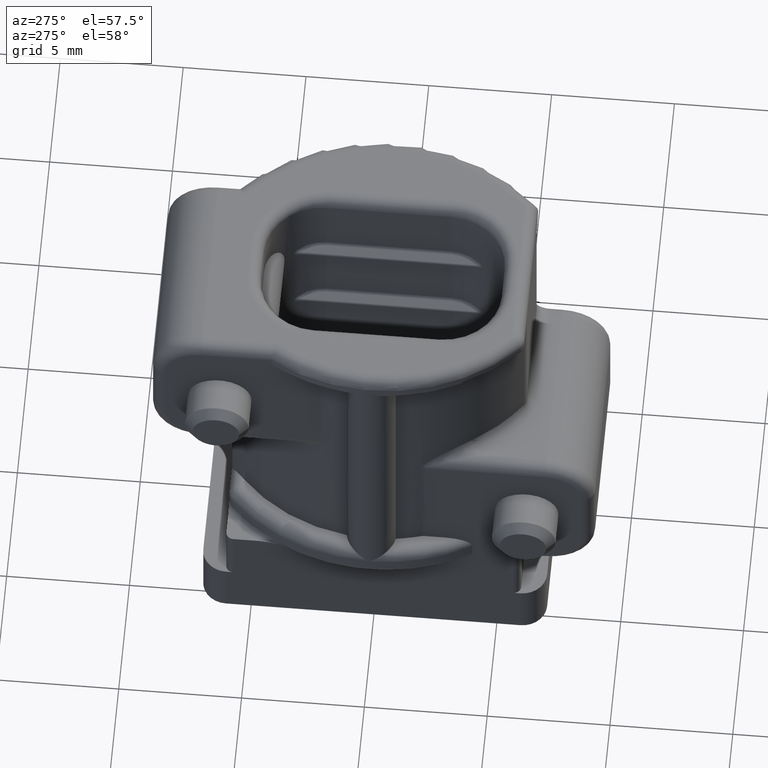
[diagram: clean part render]
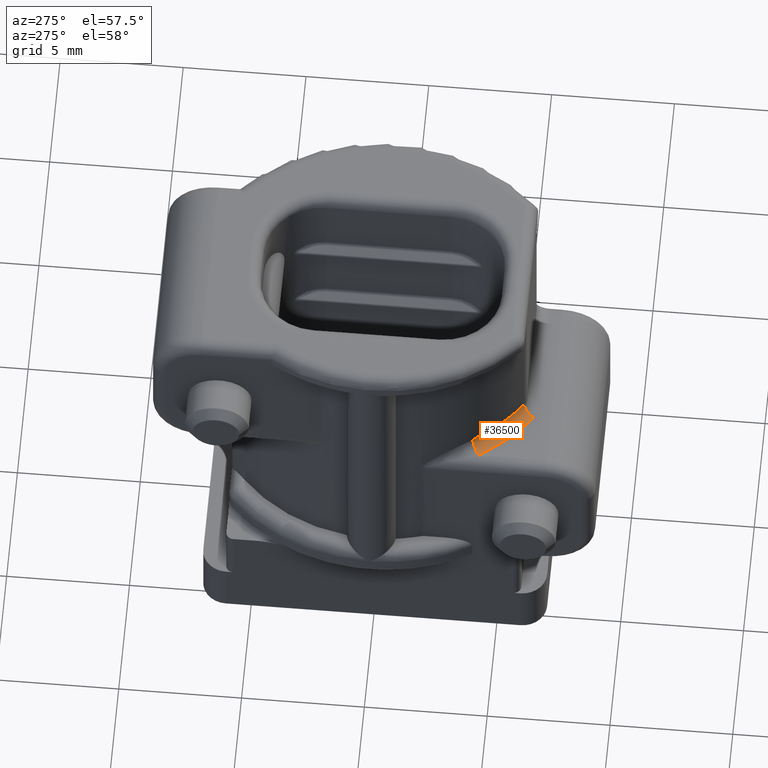
[diagram: same view with one face highlighted and labeled with its STEP entity id]
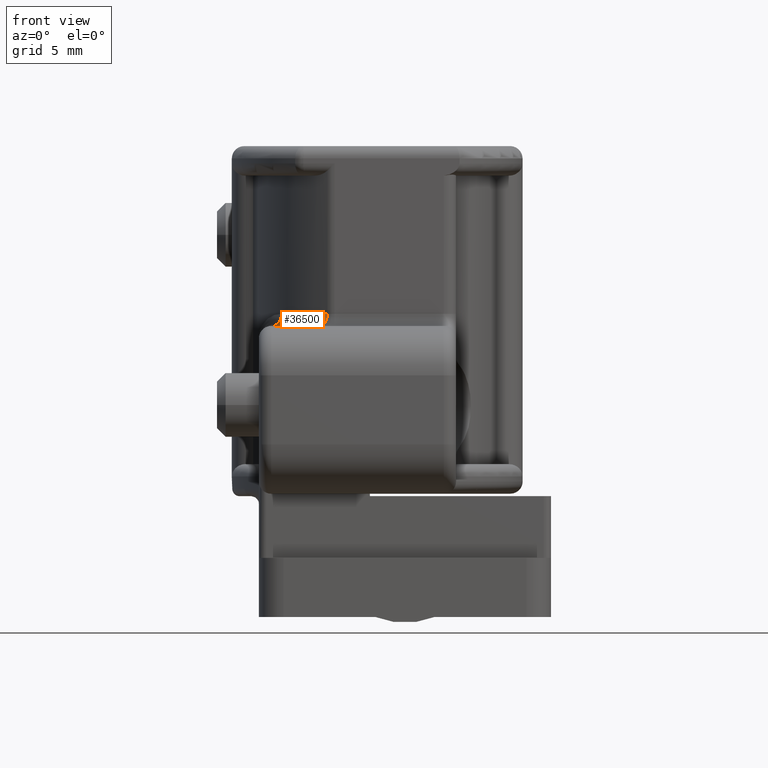
[diagram: same view with one face highlighted and labeled with its STEP entity id]
A machine part, auxiliary view. The second image highlights one B-rep face of the part: STEP entity #36500.
A second angle (front view) of the same face is appended — the face is thin or edge-on in the first view.
In plain terms, the highlighted face is a freeform B-spline surface patch.
Its self-contained STEP definition (entity closure, byte-faithful):
#35110=CARTESIAN_POINT('',(21.41775517589,-47.0709607659803,
2.28225100263955));
#35120=CARTESIAN_POINT('',(21.3025711537159,-47.0054394210852,
2.28225100263955));
#35130=CARTESIAN_POINT('',(21.1890697364984,-46.9369900740255,
2.28225100263955));
#35140=CARTESIAN_POINT('',(20.9308619156976,-46.7721563502708,
2.28225100263955));
#35150=CARTESIAN_POINT('',(20.7875286768989,-46.6737636515991,
2.28225100263955));
#35160=CARTESIAN_POINT('',(20.5076760054613,-46.4675667677873,
2.28225100263955));
#35170=CARTESIAN_POINT('',(20.3712347546678,-46.3598201874317,
2.28225100263955));
#35180=CARTESIAN_POINT('',(20.105779461153,-46.135391669303,
2.28225100263955));
#35190=CARTESIAN_POINT('',(19.9768395781123,-46.0187724296474,
2.28225100263955));
#35200=CARTESIAN_POINT('',(19.7269672503014,-45.7771146294447,
2.28225100263955));
#35210=CARTESIAN_POINT('',(19.6061046118318,-45.652143580323,
2.28225100263955));
#35220=CARTESIAN_POINT('',(19.3729312401982,-45.3943358004453,
2.28225100263955));
#35230=CARTESIAN_POINT('',(19.2606856481829,-45.2615710929001,
2.28225100263955));
#35240=CARTESIAN_POINT('',(19.0836344327847,-45.0373682532022,
2.28225100263955));
#35250=CARTESIAN_POINT('',(19.0162011531504,-44.9480926652216,
2.28225100263955));
#35260=CARTESIAN_POINT('',(18.9364601948509,-44.8376621880301,
2.28225100263955));
#35270=CARTESIAN_POINT('',(18.9222975429515,-44.817854047949,
2.28225100263955));
#35280=CARTESIAN_POINT('',(18.9082278794808,-44.7979799142288,
2.28225100263955));
#35290=CARTESIAN_POINT('',(21.5625739438976,-46.8163749021547,
2.28225100263955));
#35300=CARTESIAN_POINT('',(21.451715129289,-46.7533139107991,
2.28225100263955));
#35310=CARTESIAN_POINT('',(21.3424757371264,-46.6874348649683,
2.28225100263955));
#35320=CARTESIAN_POINT('',(21.0939637265509,-46.5287907155623,
2.28225100263955));
#35330=CARTESIAN_POINT('',(20.9560127100182,-46.4340927033292,
2.28225100263955));
#35340=CARTESIAN_POINT('',(20.6866686218795,-46.2356385975955,
2.28225100263955));
#35350=CARTESIAN_POINT('',(20.5553507963582,-46.1319379457959,
2.28225100263955));
#35360=CARTESIAN_POINT('',(20.2998634586599,-45.9159368111375,
2.28225100263955));
#35370=CARTESIAN_POINT('',(20.1757653214368,-45.803696672056,
2.28225100263955));
#35380=CARTESIAN_POINT('',(19.9352758026496,-45.5711132219754,
2.28225100263955));
#35390=CARTESIAN_POINT('',(19.8189516061307,-45.4508348873199,
2.28225100263955));
#35400=CARTESIAN_POINT('',(19.5945339908253,-45.2027078959657,
2.28225100263955));
#35410=CARTESIAN_POINT('',(19.4865032671104,-45.0749285579766,
2.28225100263955));
#35420=CARTESIAN_POINT('',(19.3161003979133,-44.8591446274312,
2.28225100263955));
#35430=CARTESIAN_POINT('',(19.2511992657578,-44.7732213746197,
2.28225100263955));
#35440=CARTESIAN_POINT('',(19.1747532143741,-44.6673536546186,
2.28225100263955));
#35450=CARTESIAN_POINT('',(19.1612155798752,-44.6484295727992,
2.28225100263955));
#35460=CARTESIAN_POINT('',(19.1472805314395,-44.6287455583243,
2.28225100263955));
#35470=CARTESIAN_POINT('',(21.6649762767989,-46.6363555114494,
2.075144221453));
#35480=CARTESIAN_POINT('',(21.5571758457898,-46.5750342527656,
2.07514422145301));
#35490=CARTESIAN_POINT('',(21.4509501604452,-46.5109726843635,
2.07514422145301));
#35500=CARTESIAN_POINT('',(21.2092941230291,-46.356705224952,
2.07514422145302));
#35510=CARTESIAN_POINT('',(21.0751489123585,-46.2646197505542,
2.075144221453));
#35520=CARTESIAN_POINT('',(20.813235514731,-46.0716406157046,
2.075144221453));
#35530=CARTESIAN_POINT('',(20.6855404979627,-45.9708008674232,
2.07514422145301));
#35540=CARTESIAN_POINT('',(20.4371015694169,-45.7607587927643,
2.07514422145301));
#35550=CARTESIAN_POINT('',(20.3164270634941,-45.6516151453942,
2.07514422145301));
#35560=CARTESIAN_POINT('',(20.0825721925942,-45.4254482298199,
2.07514422145301));
#35570=CARTESIAN_POINT('',(19.9694571591547,-45.3084881453855,
2.07514422145301));
#35580=CARTESIAN_POINT('',(19.7512307985233,-45.0672065052436,
2.07514422145301));
#35590=CARTESIAN_POINT('',(19.6461804367654,-44.9429523558743,
2.07514422145301));
#35600=CARTESIAN_POINT('',(19.4804786582517,-44.7331214930802,
2.07514422145366));
#35610=CARTESIAN_POINT('',(19.4173680247477,-44.6495686992008,
2.07514422145239));
#35620=CARTESIAN_POINT('',(19.3427386663392,-44.5462170987524,
2.0751443071468));
#35630=CARTESIAN_POINT('',(19.3294838767411,-44.5276787112407,
2.07514437426312));
#35640=CARTESIAN_POINT('',(19.3163161147749,-44.5090785604512,
2.07514422145301));
#35650=CARTESIAN_POINT('',(21.6649762767989,-46.6363555114494,
1.78225100263955));
#35660=CARTESIAN_POINT('',(21.5571758457899,-46.5750342527656,
1.78225100263955));
#35670=CARTESIAN_POINT('',(21.4509501604452,-46.5109726843635,
1.78225100263955));
#35680=CARTESIAN_POINT('',(21.2092941230291,-46.356705224952,
1.78225100263955));
#35690=CARTESIAN_POINT('',(21.0751489123585,-46.2646197505542,
1.78225100263955));
#35700=CARTESIAN_POINT('',(20.8132355147311,-46.0716406157046,
1.78225100263955));
#35710=CARTESIAN_POINT('',(20.6855404979627,-45.9708008674232,
1.78225100263955));
#35720=CARTESIAN_POINT('',(20.4371015694169,-45.7607587927643,
1.78225100263955));
#35730=CARTESIAN_POINT('',(20.3164270634941,-45.6516151453943,
1.78225100263955));
#35740=CARTESIAN_POINT('',(20.0825721925942,-45.4254482298199,
1.78225100263955));
#35750=CARTESIAN_POINT('',(19.9694571591547,-45.3084881453855,
1.78225100263955));
#35760=CARTESIAN_POINT('',(19.7512307985233,-45.0672065052436,
1.78225100263955));
#35770=CARTESIAN_POINT('',(19.6461804367654,-44.9429523558743,
1.78225100263955));
#35780=CARTESIAN_POINT('',(19.4804786582517,-44.7331214930802,
1.78225100263955));
#35790=CARTESIAN_POINT('',(19.4173680247477,-44.6495686992008,
1.78225100263955));
#35800=CARTESIAN_POINT('',(19.3427386663392,-44.5462170987524,
1.78225100263955));
#35810=CARTESIAN_POINT('',(19.3294838767411,-44.5276787112407,
1.78225100263955));
#35820=CARTESIAN_POINT('',(19.3163161147749,-44.5090785604512,
1.78225100263955));
#35830=(BOUNDED_SURFACE() B_SPLINE_SURFACE(3,3,((#35110,#35290,#35470,
#35650),(#35120,#35300,#35480,#35660),(#35130,#35310,#35490,#35670),(
#35140,#35320,#35500,#35680),(#35150,#35330,#35510,#35690),(#35160,
#35340,#35520,#35700),(#35170,#35350,#35530,#35710),(#35180,#35360,
#35540,#35720),(#35190,#35370,#35550,#35730),(#35200,#35380,#35560,
#35740),(#35210,#35390,#35570,#35750),(#35220,#35400,#35580,#35760),(
#35230,#35410,#35590,#35770),(#35240,#35420,#35600,#35780),(#35250,
#35430,#35610,#35790),(#35260,#35440,#35620,#35800),(#35270,#35450,
#35630,#35810),(#35280,#35460,#35640,#35820)),.UNSPECIFIED.,.F.,.F.,.F.)
 B_SPLINE_SURFACE_WITH_KNOTS((4,2,2,2,2,2,2,2,4),(4,4),(39.4653612934512
,39.8499943282044,40.3544246361564,40.8588549441083,41.3632852520603,
41.8677155600123,42.3721458679642,42.6968364131861,42.7675161868999),(0.
,1.),.UNSPECIFIED.) GEOMETRIC_REPRESENTATION_ITEM() 
RATIONAL_B_SPLINE_SURFACE(((1.,0.804737854124372,0.804737854124372,1.),(
1.,0.804737854124368,0.804737854124368,1.),(1.,0.804737854124358,
0.804737854124358,1.),(1.,0.804737854124364,0.804737854124364,1.),(1.,
0.804737854124369,0.804737854124369,1.),(1.,0.804737854124372,
0.804737854124372,1.),(1.,0.804737854124364,0.804737854124364,1.),(1.,
0.804737854124369,0.804737854124369,1.),(1.,0.804737854124359,
0.804737854124359,1.),(1.,0.80473785412436,0.80473785412436,1.),(1.,
0.804737854124363,0.804737854124363,1.),(1.,0.804737854124363,
0.804737854124363,1.),(1.,0.804737854124365,0.804737854124365,1.),(1.,
0.804737854124367,0.804737854124367,1.),(1.,0.804737854124368,
0.804737854124368,1.),(1.,0.8047376186768,0.8047376186768,1.),(1.,
0.804737434271505,0.804737434271505,1.),(1.,0.804737854124327,
0.804737854124327,1.))) REPRESENTATION_ITEM('') SURFACE());
#35840=CARTESIAN_POINT('',(20.962792122607,-46.7911187952982,
2.28225100263955));
#35850=CARTESIAN_POINT('',(21.1246950807131,-46.5470412056194,
2.28225100263955));
#35860=CARTESIAN_POINT('',(21.2391775218033,-46.3744521286315,
2.07514422145301));
#35870=CARTESIAN_POINT('',(21.2391775218033,-46.3744521286315,
1.78225100263955));
#35880=(BOUNDED_CURVE() B_SPLINE_CURVE(3,(#35840,#35850,#35860,#35870),
.UNSPECIFIED.,.F.,.F.) B_SPLINE_CURVE_WITH_KNOTS((4,4),(0.,1.),
.UNSPECIFIED.) CURVE() GEOMETRIC_REPRESENTATION_ITEM() 
RATIONAL_B_SPLINE_CURVE((1.,0.804737854124327,0.804737854124327,1.)) 
REPRESENTATION_ITEM(''));
#35890=CARTESIAN_POINT('',(20.9627921226038,-46.7911187953034,
2.28225100263955));
#35900=VERTEX_POINT('',#35890);
#35910=CARTESIAN_POINT('',(21.2391775218033,-46.3744521286315,
1.78225100263955));
#35920=VERTEX_POINT('',#35910);
#35930=EDGE_CURVE('',#35900,#35920,#35880,.T.);
#35940=ORIENTED_EDGE('',*,*,#35930,.F.);
#35950=CARTESIAN_POINT('',(21.6649762767148,-46.6363555114015,
1.78225100263955));
#35960=CARTESIAN_POINT('',(21.5571758457346,-46.5750342527322,
1.78225100263955));
#35970=CARTESIAN_POINT('',(21.4509501604181,-46.5109726843462,
1.78225100263955));
#35980=CARTESIAN_POINT('',(21.2092941230291,-46.356705224952,
1.78225100263955));
#35990=CARTESIAN_POINT('',(21.0751489123585,-46.2646197505542,
1.78225100263955));
#36000=CARTESIAN_POINT('',(20.8132355147311,-46.0716406157046,
1.78225100263955));
#36010=CARTESIAN_POINT('',(20.6855404979627,-45.9708008674232,
1.78225100263955));
#36020=CARTESIAN_POINT('',(20.4371015694169,-45.7607587927643,
1.78225100263955));
#36030=CARTESIAN_POINT('',(20.3164270634941,-45.6516151453943,
1.78225100263955));
#36040=CARTESIAN_POINT('',(20.0825721925942,-45.4254482298199,
1.78225100263955));
#36050=CARTESIAN_POINT('',(19.9694571591547,-45.3084881453855,
1.78225100263955));
#36060=CARTESIAN_POINT('',(19.7512307985233,-45.0672065052436,
1.78225100263955));
#36070=CARTESIAN_POINT('',(19.6461804367654,-44.9429523558743,
1.78225100263955));
#36080=CARTESIAN_POINT('',(19.4804786582517,-44.7331214930802,
1.78225100263955));
#36090=CARTESIAN_POINT('',(19.4173680247477,-44.6495686992008,
1.78225100263955));
#36100=CARTESIAN_POINT('',(19.3427386663392,-44.5462170987524,
1.78225100263955));
#36110=CARTESIAN_POINT('',(19.3294838767411,-44.5276787112407,
1.78225100263955));
#36120=CARTESIAN_POINT('',(19.3163161147749,-44.5090785604512,
1.78225100263955));
#36130=B_SPLINE_CURVE_WITH_KNOTS('',3,(#35950,#35960,#35970,#35980,
#35990,#36000,#36010,#36020,#36030,#36040,#36050,#36060,#36070,#36080,
#36090,#36100,#36110,#36120),.UNSPECIFIED.,.F.,.F.,(4,2,2,2,2,2,2,2,4),(
39.4653612935512,39.8499943282044,40.3544246361564,40.8588549441083,
41.3632852520603,41.8677155600123,42.3721458679642,42.6968364131861,
42.7675161868999),.UNSPECIFIED.);
#36140=CARTESIAN_POINT('',(19.3163161147749,-44.5090785604512,
1.78225100263955));
#36150=VERTEX_POINT('',#36140);
#36160=EDGE_CURVE('',#35920,#36150,#36130,.T.);
#36170=ORIENTED_EDGE('',*,*,#36160,.F.);
#36180=CARTESIAN_POINT('',(18.9082278794808,-44.7979799142288,
2.28225100263955));
#36190=CARTESIAN_POINT('',(19.1472805314395,-44.6287455583243,
2.28225100263955));
#36200=CARTESIAN_POINT('',(19.3163161147749,-44.5090785604512,
2.07514422145301));
#36210=CARTESIAN_POINT('',(19.3163161147749,-44.5090785604512,
1.78225100263955));
#36220=(BOUNDED_CURVE() B_SPLINE_CURVE(3,(#36180,#36190,#36200,#36210),
.UNSPECIFIED.,.F.,.F.) B_SPLINE_CURVE_WITH_KNOTS((4,4),(0.,1.),
.UNSPECIFIED.) CURVE() GEOMETRIC_REPRESENTATION_ITEM() 
RATIONAL_B_SPLINE_CURVE((1.,0.804737854124326,0.804737854124326,1.)) 
REPRESENTATION_ITEM(''));
#36230=CARTESIAN_POINT('',(18.9082278794808,-44.7979799142288,
2.28225100263955));
#36240=VERTEX_POINT('',#36230);
#36250=EDGE_CURVE('',#36240,#36150,#36220,.T.);
#36260=ORIENTED_EDGE('',*,*,#36250,.T.);
#36270=CARTESIAN_POINT('',(21.3880254626204,-47.0539628082294,
2.28225100263955));
#36280=CARTESIAN_POINT('',(21.2830295282089,-46.9936251777684,
2.28225100263955));
#36290=CARTESIAN_POINT('',(21.179446782962,-46.930847009652,
2.28225100263955));
#36300=CARTESIAN_POINT('',(20.9308619156976,-46.7721563502708,
2.28225100263955));
#36310=CARTESIAN_POINT('',(20.7875286768989,-46.6737636515991,
2.28225100263955));
#36320=CARTESIAN_POINT('',(20.5076760054613,-46.4675667677873,
2.28225100263955));
#36330=CARTESIAN_POINT('',(20.3712347546678,-46.3598201874317,
2.28225100263955));
#36340=CARTESIAN_POINT('',(20.105779461153,-46.135391669303,
2.28225100263955));
#36350=CARTESIAN_POINT('',(19.9768395781123,-46.0187724296474,
2.28225100263955));
#36360=CARTESIAN_POINT('',(19.7269672503014,-45.7771146294447,
2.28225100263955));
#36370=CARTESIAN_POINT('',(19.6061046118318,-45.652143580323,
2.28225100263955));
#36380=CARTESIAN_POINT('',(19.3729312401982,-45.3943358004453,
2.28225100263955));
#36390=CARTESIAN_POINT('',(19.2606856481829,-45.2615710929001,
2.28225100263955));
#36400=CARTESIAN_POINT('',(19.0836344327847,-45.0373682532022,
2.28225100263955));
#36410=CARTESIAN_POINT('',(19.0162011531504,-44.9480926652216,
2.28225100263955));
#36420=CARTESIAN_POINT('',(18.9364601948509,-44.8376621880301,
2.28225100263955));
#36430=CARTESIAN_POINT('',(18.9222975429515,-44.817854047949,
2.28225100263955));
#36440=CARTESIAN_POINT('',(18.9082278794808,-44.7979799142288,
2.28225100263955));
#36450=B_SPLINE_CURVE_WITH_KNOTS('',3,(#36270,#36280,#36290,#36300,
#36310,#36320,#36330,#36340,#36350,#36360,#36370,#36380,#36390,#36400,
#36410,#36420,#36430,#36440),.UNSPECIFIED.,.F.,.F.,(4,2,2,2,2,2,2,2,4),(
39.4984951280936,39.8499943282044,40.3544246361564,40.8588549441083,
41.3632852520603,41.8677155600123,42.3721458679642,42.6968364131861,
42.7675161868999),.UNSPECIFIED.);
#36460=EDGE_CURVE('',#35900,#36240,#36450,.T.);
#36470=ORIENTED_EDGE('',*,*,#36460,.T.);
#36480=EDGE_LOOP('',(#36470,#36260,#36170,#35940));
#36490=FACE_OUTER_BOUND('',#36480,.T.);
#36500=ADVANCED_FACE('',(#36490),#35830,.T.);